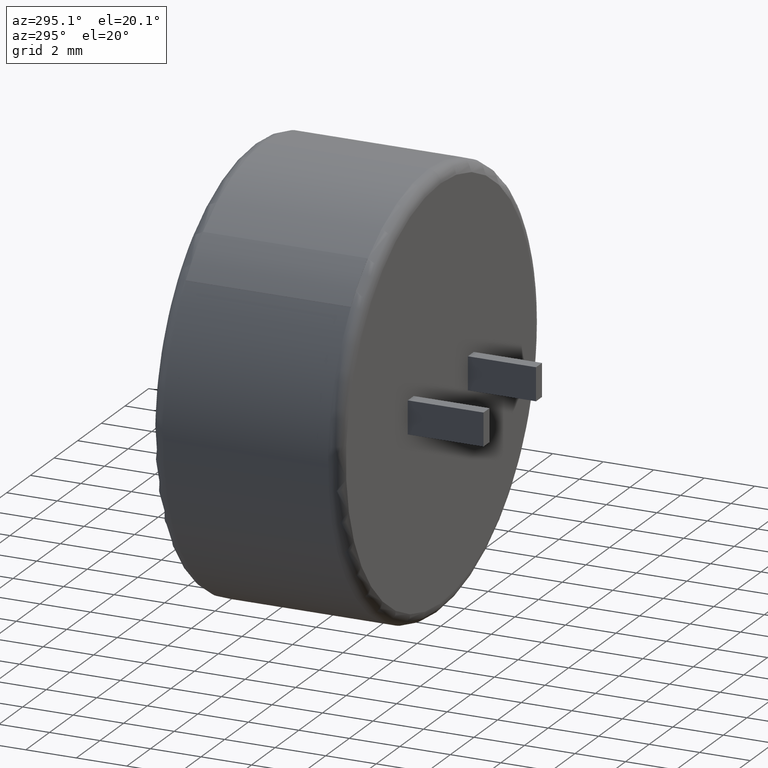
[diagram: clean part render]
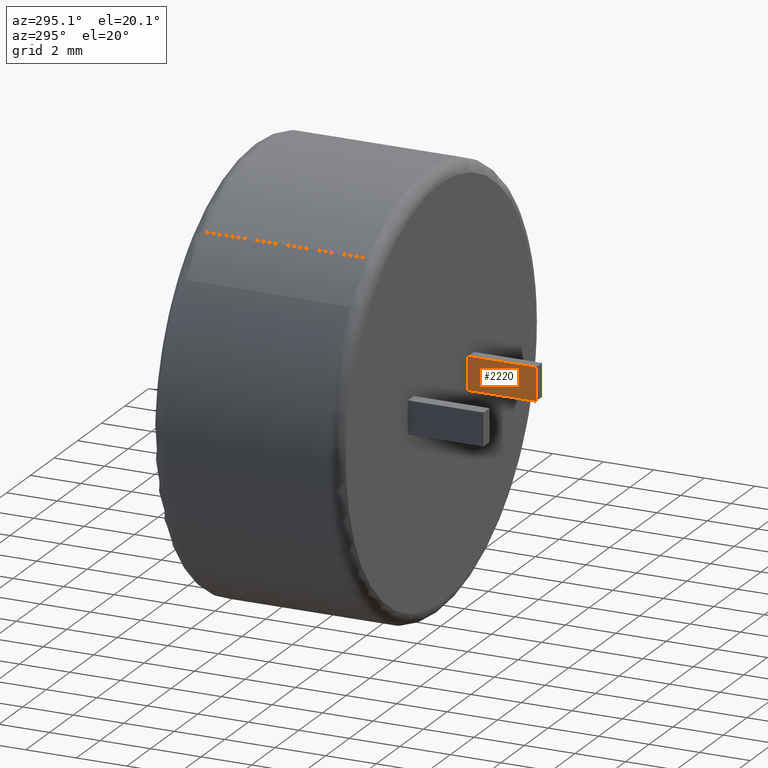
[diagram: same view with one face highlighted and labeled with its STEP entity id]
A machine part, auxiliary view. The second image highlights one B-rep face of the part: STEP entity #2220.
In plain terms, the highlighted planar face has unit normal (1, 0, -0).
Its self-contained STEP definition (entity closure, byte-faithful):
#37 = EDGE_CURVE ( 'NONE', #2674, #2280, #185, .T. ) ;
#162 = VECTOR ( 'NONE', #1360, 1000.000000000000000 ) ;
#185 = LINE ( 'NONE', #2686, #1496 ) ;
#229 = CARTESIAN_POINT ( 'NONE',  ( 2.290000000000000000, 0.0000000000000000000, -0.6500000000000031300 ) ) ;
#383 = EDGE_CURVE ( 'NONE', #937, #886, #719, .T. ) ;
#477 = DIRECTION ( 'NONE',  ( 1.000000000000000000, 0.0000000000000000000, -0.0000000000000000000 ) ) ;
#514 = CARTESIAN_POINT ( 'NONE',  ( 2.290000000000000000, 0.0000000000000000000, -0.6500000000000031300 ) ) ;
#719 = LINE ( 'NONE', #2310, #856 ) ;
#765 = CARTESIAN_POINT ( 'NONE',  ( 2.290000000000000000, 0.0000000000000000000, 0.6499999999999966900 ) ) ;
#856 = VECTOR ( 'NONE', #1043, 1000.000000000000000 ) ;
#857 = PLANE ( 'NONE',  #1781 ) ;
#886 = VERTEX_POINT ( 'NONE', #229 ) ;
#911 = ORIENTED_EDGE ( 'NONE', *, *, #1786, .T. ) ;
#937 = VERTEX_POINT ( 'NONE', #1340 ) ;
#1043 = DIRECTION ( 'NONE',  ( -0.0000000000000000000, 1.000000000000000000, -0.0000000000000000000 ) ) ;
#1047 = ORIENTED_EDGE ( 'NONE', *, *, #1610, .F. ) ;
#1340 = CARTESIAN_POINT ( 'NONE',  ( 2.290000000000000000, -2.700000000000000200, -0.6500000000000031300 ) ) ;
#1360 = DIRECTION ( 'NONE',  ( -0.0000000000000000000, -0.0000000000000000000, -1.000000000000000000 ) ) ;
#1407 = LINE ( 'NONE', #514, #162 ) ;
#1492 = DIRECTION ( 'NONE',  ( -0.0000000000000000000, -0.0000000000000000000, -1.000000000000000000 ) ) ;
#1496 = VECTOR ( 'NONE', #1639, 1000.000000000000000 ) ;
#1503 = FACE_OUTER_BOUND ( 'NONE', #2478, .T. ) ;
#1547 = DIRECTION ( 'NONE',  ( -0.0000000000000000000, 0.0000000000000000000, -1.000000000000000000 ) ) ;
#1610 = EDGE_CURVE ( 'NONE', #2674, #937, #2040, .T. ) ;
#1639 = DIRECTION ( 'NONE',  ( -0.0000000000000000000, 1.000000000000000000, -0.0000000000000000000 ) ) ;
#1670 = CARTESIAN_POINT ( 'NONE',  ( 2.290000000000000000, -2.700000000000000200, -0.6500000000000031300 ) ) ;
#1781 = AXIS2_PLACEMENT_3D ( 'NONE', #2341, #477, #1547 ) ;
#1786 = EDGE_CURVE ( 'NONE', #2280, #886, #1407, .T. ) ;
#1984 = ORIENTED_EDGE ( 'NONE', *, *, #383, .F. ) ;
#2040 = LINE ( 'NONE', #1670, #2596 ) ;
#2086 = ORIENTED_EDGE ( 'NONE', *, *, #37, .T. ) ;
#2120 = CARTESIAN_POINT ( 'NONE',  ( 2.290000000000000000, -2.700000000000000200, 0.6499999999999966900 ) ) ;
#2220 = ADVANCED_FACE ( 'NONE', ( #1503 ), #857, .F. ) ;
#2280 = VERTEX_POINT ( 'NONE', #765 ) ;
#2310 = CARTESIAN_POINT ( 'NONE',  ( 2.290000000000000000, -2.700000000000000200, -0.6500000000000031300 ) ) ;
#2341 = CARTESIAN_POINT ( 'NONE',  ( 2.290000000000000000, -2.700000000000000200, -0.6500000000000031300 ) ) ;
#2478 = EDGE_LOOP ( 'NONE', ( #911, #1984, #1047, #2086 ) ) ;
#2596 = VECTOR ( 'NONE', #1492, 1000.000000000000000 ) ;
#2674 = VERTEX_POINT ( 'NONE', #2120 ) ;
#2686 = CARTESIAN_POINT ( 'NONE',  ( 2.290000000000000000, -2.700000000000000200, 0.6499999999999966900 ) ) ;